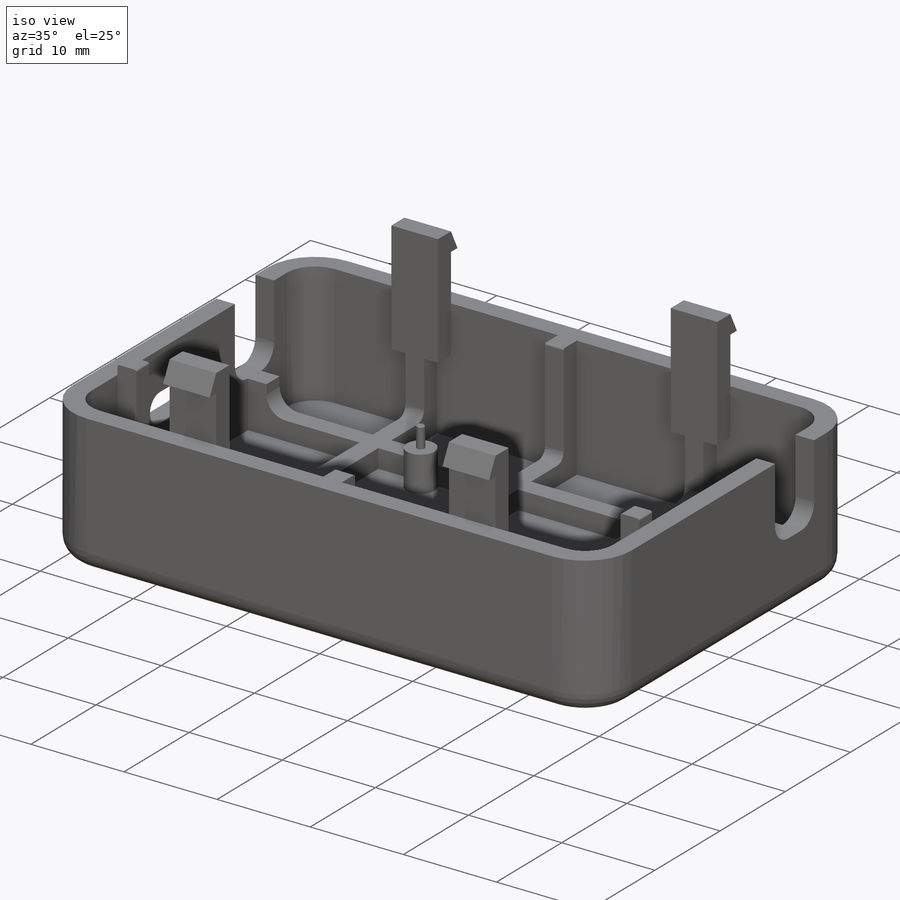
[diagram: iso view]
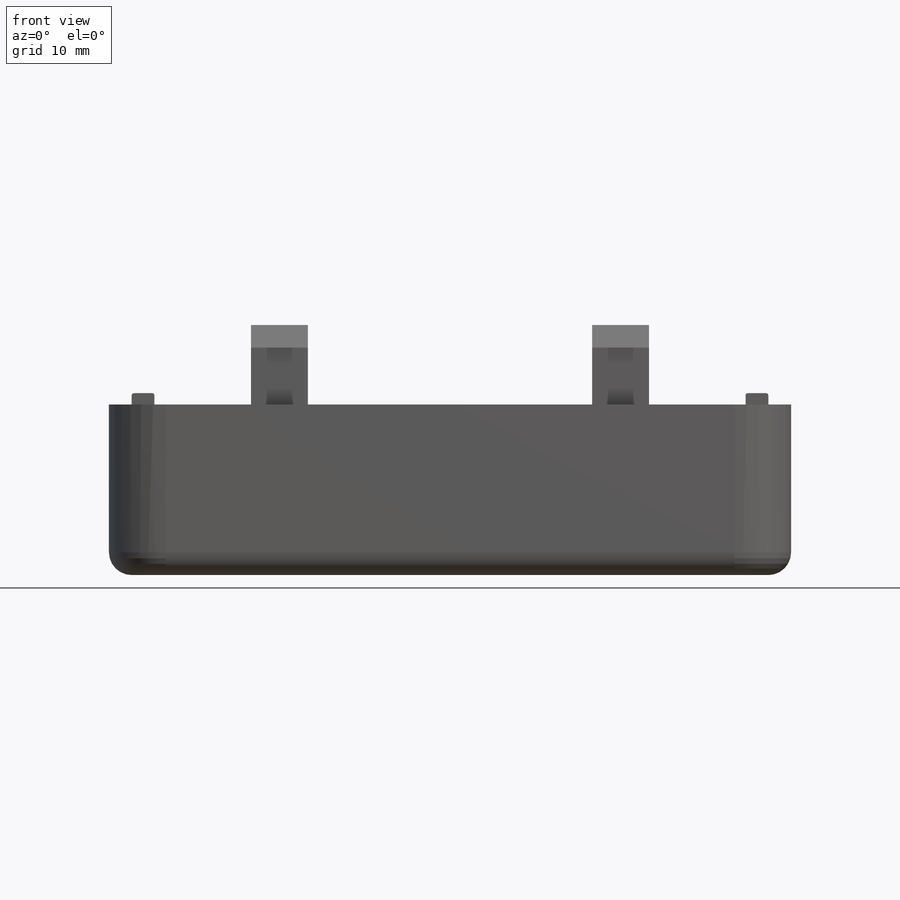
[diagram: front view]
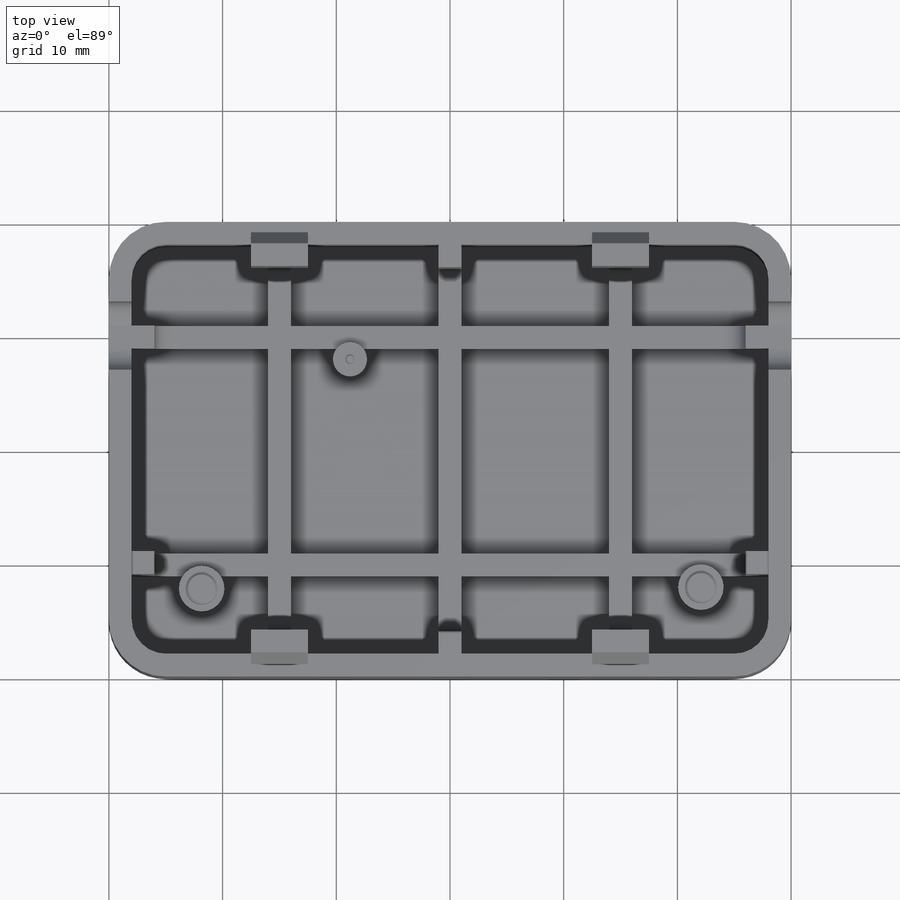
[diagram: top view]
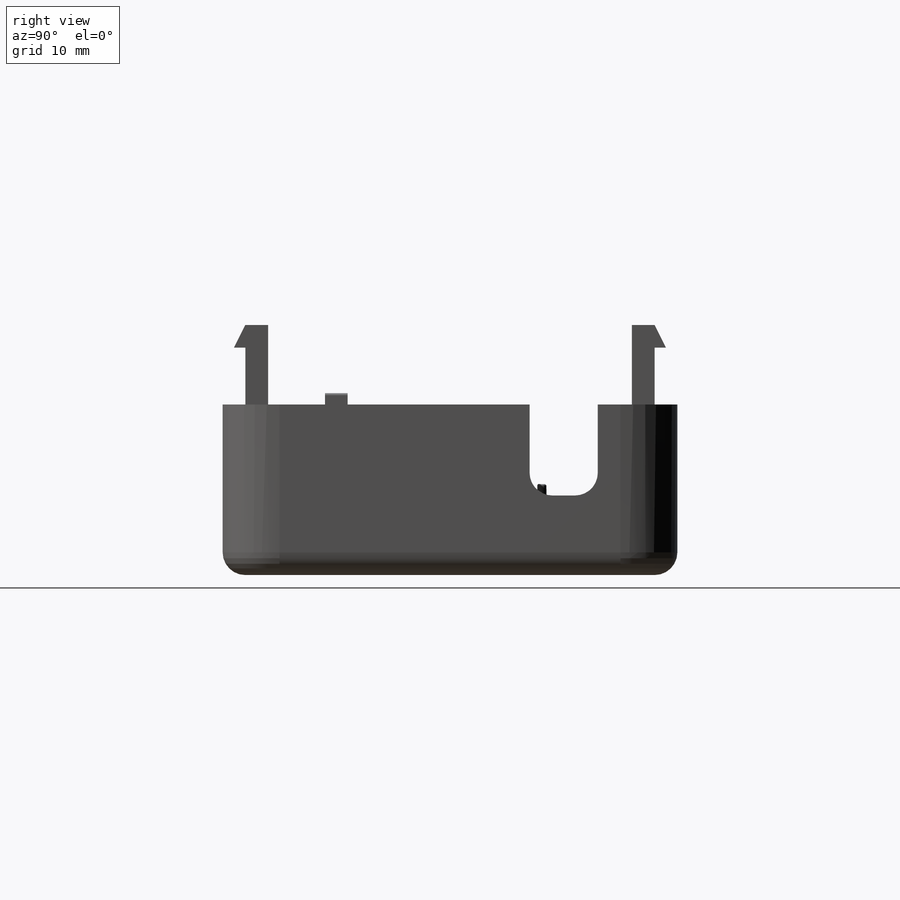
[diagram: right view]
SOLIDWORKS PART (.sldprt)
format: sldprt  version: not decoded by parser v0  size: 582,144 bytes
history: native  units: mm
features: sketch x10, extrude x8, plane x5, mirror x3, fillet x2, cut_extrude x2, chamfer x2, material x1, shell x1, pattern_linear x1 (+10 scaffold rows collapsed)
feature tree (45):
  scaffold x10  (default folders/planes/origin — collapsed)
  material  "材质 <未指定>"
  plane  "前视基准面"
  plane  "上视基准面"
  plane  "右视基准面"
  sketch  "草图1"  dims[D1=60.0mm D2=40.0mm]
  extrude  "凸台-拉伸1"  Depth=15mm
  fillet  "圆角1"  Radius=5mm
  fillet  "圆角2"  Radius=2mm
  shell  "抽壳1"  Thickness=2mm
  sketch  "草图3"  dims[D4=1.0mm D5=0.2mm D1=2.0mm D2=2.0mm D3=2.0mm]
  extrude  "凸台-拉伸2"  Depth=2mm
  pattern_linear  "阵列(线性)1"  Count1=2 Count2=2 Spacing1=15mm Spacing2=15mm
  plane  "基准面1"  Offset=10mm
  sketch  "草图4"  dims[c1.D4=0.2mm c1.D5=2.0mm c1.D7=0.2mm c1.D1=2.0mm c1.D2=2.0mm c1.D3=2.0mm c1.D6=1.0mm c2.D4=1.0mm]
  extrude  "凸台-拉伸3"  Depth=2mm
  plane  "基准面2"  Offset=10mm
  extrude  "凸台-拉伸4"  [1 undecoded]
  sketch  "草图4<2>"  dims[D1=2.0mm]
  sketch  "草图5"  dims[D1=0.5mm]
  cut_extrude  "切除-拉伸1"  [1 undecoded]
  sketch  "草图6"  dims[D1=4.0mm D2=4.0mm D3=3.0mm]
  extrude  "凸台-拉伸5"  Depth=3.8mm
  sketch  "草图7"  dims[D1=2.8mm D2=0.8mm D3=2.8mm]
  extrude  "凸台-拉伸6"  Depth=2.2mm
  chamfer  "倒角1"  Distance=0.1mm Angle=45deg
  chamfer  "倒角2"  Distance=0.2mm Angle=45deg
  sketch  "草图8"  dims[D1=5.0mm D2=5.0mm D3=12.0mm]
  extrude  "凸台-拉伸7"  Depth=2mm
  sketch  "草图9"  dims[D1=2.0mm D2=1.0mm]
  extrude  "凸台-拉伸8"  [1 undecoded]
  mirror  "镜向2"
  mirror  "镜向3"
  sketch  "草图10"  dims[c1.D5=2.0mm c1.D1=8.0mm c1.D2=7.0mm c1.D3=6.0mm c2.D1=8.0mm c2.D4=2.0mm]
  cut_extrude  "切除-拉伸4"  Depth=10mm
  mirror  "镜向4"
decode coverage: 23 of 29 modeling features carry decoded parameters
note: 3 parameter values undecoded
summary: no parameter record found for 3 features
note: suppression state not decoded; provenance and decode notes live in map.json
